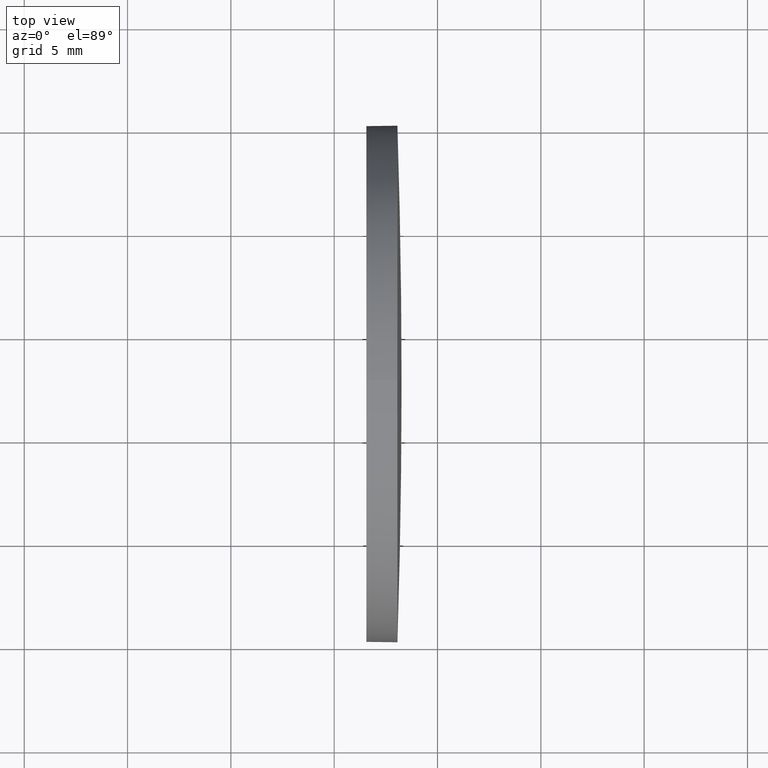
[diagram: clean part render]
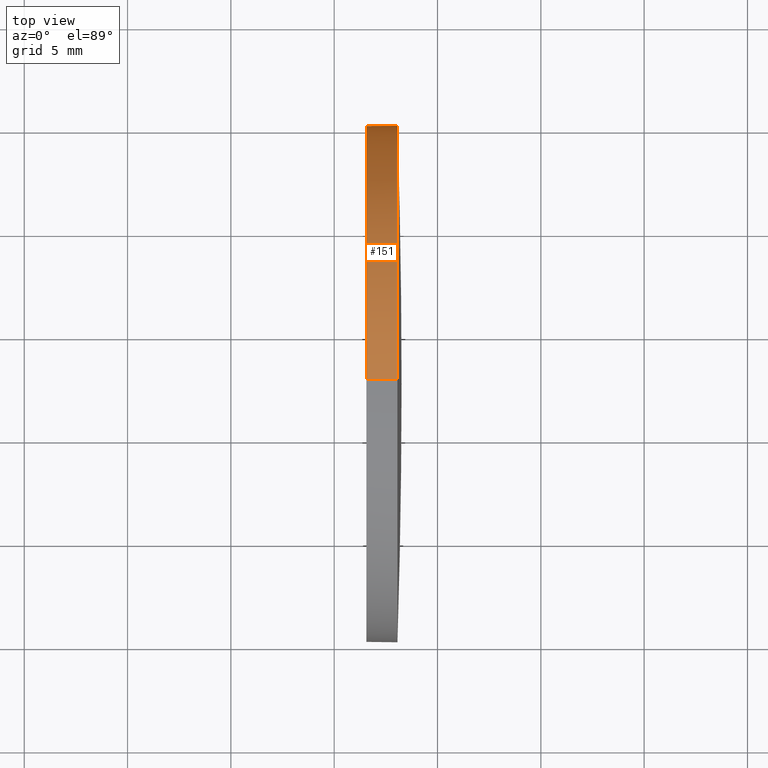
[diagram: same view with one face highlighted and labeled with its STEP entity id]
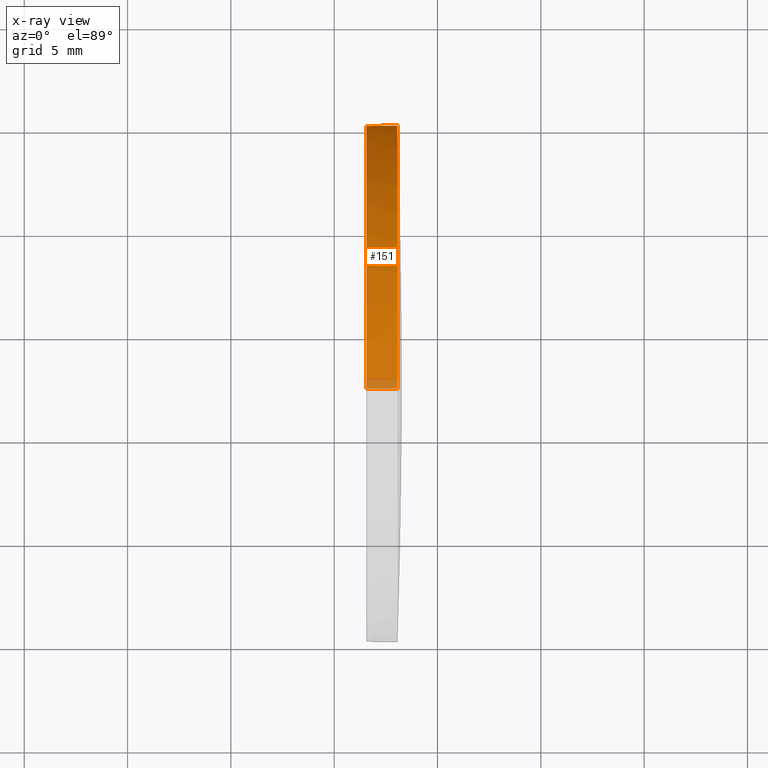
[diagram: x-ray of the same camera — body ghosted, the highlighted face saturated]
A machine part, top view. The second image highlights one B-rep face of the part: STEP entity #151.
The next image is the same camera in x-ray: the body ghosted, the highlighted face saturated — about 3% of this face is hidden behind the body in this view.
In plain terms, the highlighted cylindrical surface (partial cylindrical patch) has radius 12.5 mm, axis along (-1, -0, -0).
Its self-contained STEP definition (entity closure, byte-faithful):
#1 = AXIS2_PLACEMENT_3D ( 'NONE', #50, #88, #53 ) ;
#2 = DIRECTION ( 'NONE',  ( 0.0000000000000000000, 0.0000000000000000000, 1.000000000000000000 ) ) ;
#10 = CARTESIAN_POINT ( 'NONE',  ( 58.06002426272561900, 32.62964536423902500, -12.49999999999999600 ) ) ;
#17 = VERTEX_POINT ( 'NONE', #145 ) ;
#22 = CARTESIAN_POINT ( 'NONE',  ( 56.56002426272561900, 32.62964536423902500, 0.0000000000000000000 ) ) ;
#27 = EDGE_CURVE ( 'NONE', #102, #128, #106, .T. ) ;
#39 = CYLINDRICAL_SURFACE ( 'NONE', #81, 12.49999999999999600 ) ;
#45 = VERTEX_POINT ( 'NONE', #131 ) ;
#46 = EDGE_CURVE ( 'NONE', #170, #17, #69, .T. ) ;
#48 = CIRCLE ( 'NONE', #1, 12.49999999999999600 ) ;
#50 = CARTESIAN_POINT ( 'NONE',  ( 58.06002426272561900, 32.62964536423902500, 0.0000000000000000000 ) ) ;
#53 = DIRECTION ( 'NONE',  ( 0.0000000000000000000, 0.0000000000000000000, 1.000000000000000000 ) ) ;
#56 = VECTOR ( 'NONE', #75, 1000.000000000000000 ) ;
#58 = ORIENTED_EDGE ( 'NONE', *, *, #62, .T. ) ;
#59 = LINE ( 'NONE', #136, #56 ) ;
#61 = ORIENTED_EDGE ( 'NONE', *, *, #27, .T. ) ;
#62 = EDGE_CURVE ( 'NONE', #17, #102, #48, .T. ) ;
#69 = CIRCLE ( 'NONE', #157, 12.49999999999999600 ) ;
#71 = CARTESIAN_POINT ( 'NONE',  ( 58.06002426272561900, 32.62964536423902500, 0.0000000000000000000 ) ) ;
#75 = DIRECTION ( 'NONE',  ( -1.000000000000000000, -0.0000000000000000000, -0.0000000000000000000 ) ) ;
#76 = ORIENTED_EDGE ( 'NONE', *, *, #46, .T. ) ;
#81 = AXIS2_PLACEMENT_3D ( 'NONE', #118, #133, #146 ) ;
#82 = CARTESIAN_POINT ( 'NONE',  ( 54.53091668428863400, 32.62964536423902500, -12.49999999999999600 ) ) ;
#83 = DIRECTION ( 'NONE',  ( 0.0000000000000000000, 0.0000000000000000000, 1.000000000000000000 ) ) ;
#84 = CARTESIAN_POINT ( 'NONE',  ( 58.06002426272561900, 32.62964536423902500, 12.49999999999999600 ) ) ;
#87 = DIRECTION ( 'NONE',  ( -1.000000000000000000, -0.0000000000000000000, -0.0000000000000000000 ) ) ;
#88 = DIRECTION ( 'NONE',  ( -1.000000000000000000, -0.0000000000000000000, -0.0000000000000000000 ) ) ;
#102 = VERTEX_POINT ( 'NONE', #10 ) ;
#106 = LINE ( 'NONE', #82, #135 ) ;
#109 = ORIENTED_EDGE ( 'NONE', *, *, #113, .F. ) ;
#113 = EDGE_CURVE ( 'NONE', #170, #45, #59, .T. ) ;
#114 = DIRECTION ( 'NONE',  ( -1.000000000000000000, -0.0000000000000000000, -0.0000000000000000000 ) ) ;
#118 = CARTESIAN_POINT ( 'NONE',  ( 54.53091668428863400, 32.62964536423902500, 0.0000000000000000000 ) ) ;
#120 = FACE_OUTER_BOUND ( 'NONE', #149, .T. ) ;
#128 = VERTEX_POINT ( 'NONE', #147 ) ;
#131 = CARTESIAN_POINT ( 'NONE',  ( 56.56002426272561900, 32.62964536423902500, 12.49999999999999600 ) ) ;
#133 = DIRECTION ( 'NONE',  ( -1.000000000000000000, -0.0000000000000000000, -0.0000000000000000000 ) ) ;
#135 = VECTOR ( 'NONE', #114, 1000.000000000000000 ) ;
#136 = CARTESIAN_POINT ( 'NONE',  ( 54.53091668428863400, 32.62964536423902500, 12.49999999999999600 ) ) ;
#145 = CARTESIAN_POINT ( 'NONE',  ( 58.06002426272558400, 45.12964536423896100, 0.0000000000000000000 ) ) ;
#146 = DIRECTION ( 'NONE',  ( 0.0000000000000000000, 0.0000000000000000000, 1.000000000000000000 ) ) ;
#147 = CARTESIAN_POINT ( 'NONE',  ( 56.56002426272561900, 32.62964536423902500, -12.49999999999999600 ) ) ;
#149 = EDGE_LOOP ( 'NONE', ( #58, #61, #179, #109, #76 ) ) ;
#151 = ADVANCED_FACE ( 'NONE', ( #120 ), #39, .T. ) ;
#157 = AXIS2_PLACEMENT_3D ( 'NONE', #71, #175, #2 ) ;
#170 = VERTEX_POINT ( 'NONE', #84 ) ;
#171 = EDGE_CURVE ( 'NONE', #45, #128, #180, .T. ) ;
#172 = AXIS2_PLACEMENT_3D ( 'NONE', #22, #87, #83 ) ;
#175 = DIRECTION ( 'NONE',  ( -1.000000000000000000, -0.0000000000000000000, -0.0000000000000000000 ) ) ;
#179 = ORIENTED_EDGE ( 'NONE', *, *, #171, .F. ) ;
#180 = CIRCLE ( 'NONE', #172, 12.49999999999999600 ) ;